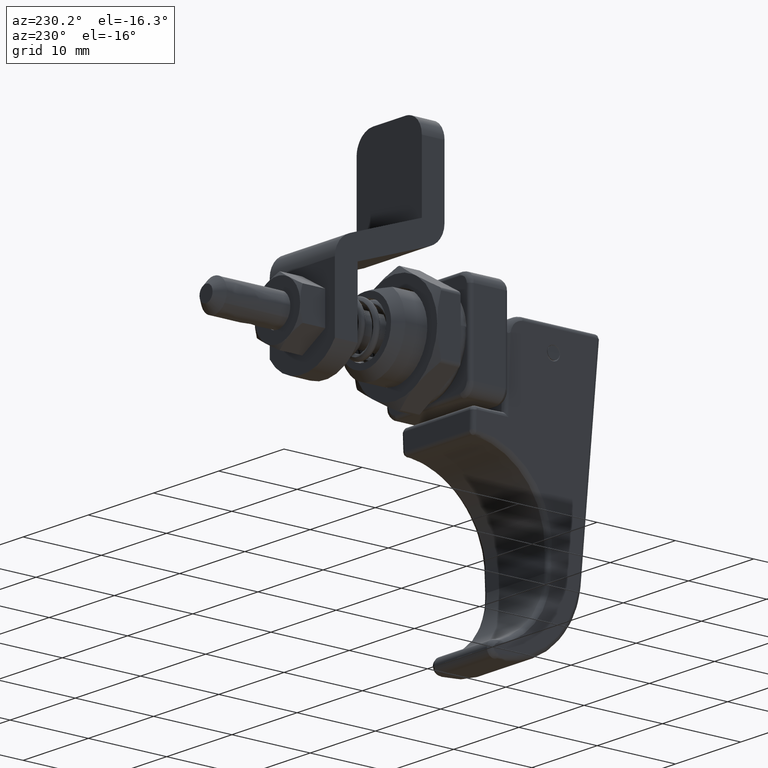
[diagram: clean part render]
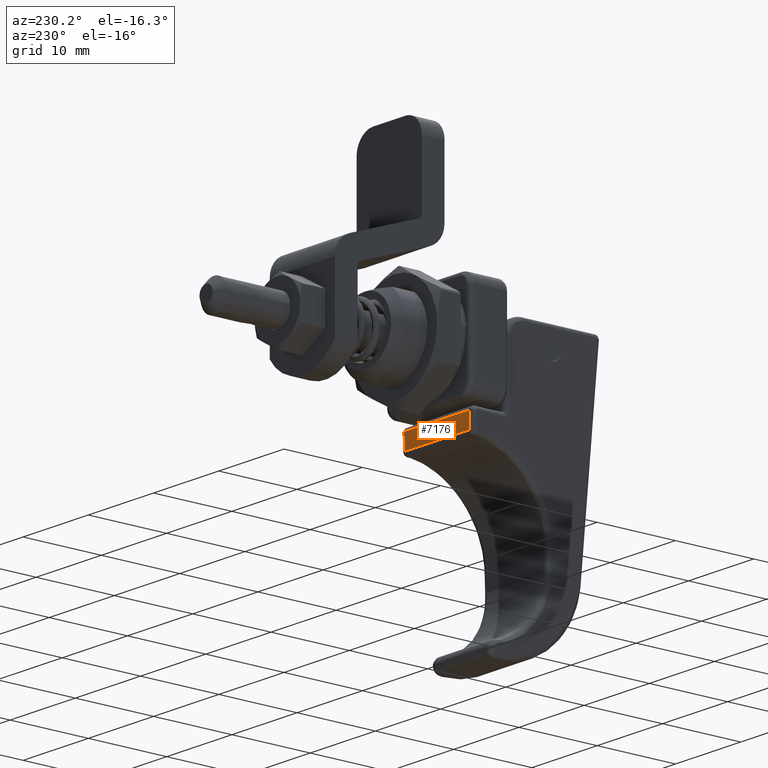
[diagram: same view with one face highlighted and labeled with its STEP entity id]
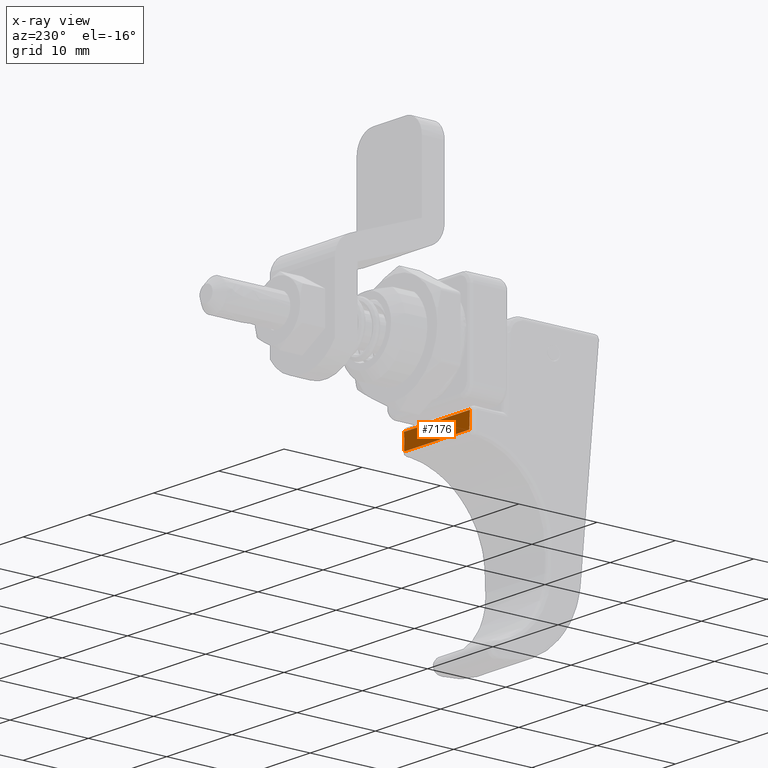
[diagram: x-ray of the same camera — body ghosted, the highlighted face saturated]
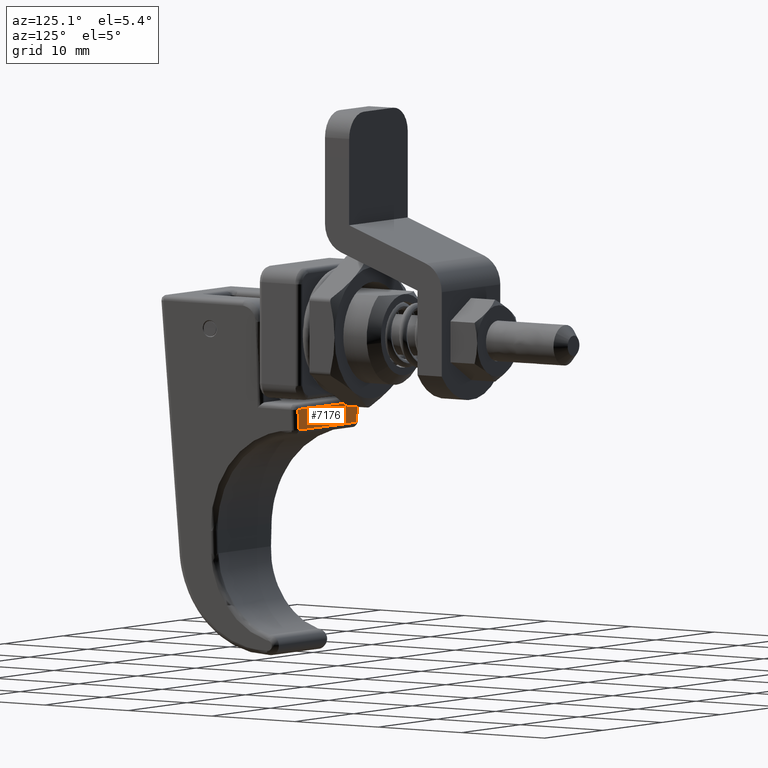
[diagram: same view with one face highlighted and labeled with its STEP entity id]
A machine part, auxiliary view. The second image highlights one B-rep face of the part: STEP entity #7176.
The next image is the same camera in x-ray: the body ghosted, the highlighted face saturated — about 0% of this face is hidden behind the body in this view.
A second angle (auxiliary view) of the same face is appended — the face is thin or edge-on in the first view.
In plain terms, the highlighted face is a freeform B-spline surface patch.
Its self-contained STEP definition (entity closure, byte-faithful):
#3235=CARTESIAN_POINT('',(-1.200000000000000,5.048913633767469,-7.500100000000000));
#3236=VERTEX_POINT('',#3235);
#3275=CARTESIAN_POINT('',(-1.200000000000000,4.962698575690050,-9.512011518298500));
#3276=VERTEX_POINT('',#3275);
#3296=CARTESIAN_POINT('',(-1.200000000000000,4.962698575690050,-9.512011518298500));
#3297=CARTESIAN_POINT('',(-1.200000000000000,5.048913633767469,-7.500100000000000));
#3298=QUASI_UNIFORM_CURVE('',1,(#3296,#3297),.UNSPECIFIED.,.F.,.U.);
#3299=EDGE_CURVE('',#3276,#3236,#3298,.T.);
#6293=CARTESIAN_POINT('',(-1.200000000000000,-4.963698575690010,-9.512011518298500));
#6294=VERTEX_POINT('',#6293);
#6522=CARTESIAN_POINT('',(-1.200000000000000,-5.049913633767500,-7.500100000000000));
#6523=VERTEX_POINT('',#6522);
#6542=CARTESIAN_POINT('',(-1.200000000000000,-5.049913633767500,-7.500100000000000));
#6543=CARTESIAN_POINT('',(-1.200000000000000,-4.963698575690010,-9.512011518298500));
#6544=QUASI_UNIFORM_CURVE('',1,(#6542,#6543),.UNSPECIFIED.,.F.,.U.);
#6545=EDGE_CURVE('',#6523,#6294,#6544,.T.);
#6934=CARTESIAN_POINT('',(-1.200000000000000,5.048913633767469,-7.500100000000000));
#6935=CARTESIAN_POINT('',(-1.200000000000000,-5.049913633767500,-7.500100000000000));
#6936=QUASI_UNIFORM_CURVE('',1,(#6934,#6935),.UNSPECIFIED.,.F.,.U.);
#6937=EDGE_CURVE('',#3236,#6523,#6936,.T.);
#6969=CARTESIAN_POINT('',(-1.200000000000000,-4.963698575690010,-9.512011518298500));
#6970=CARTESIAN_POINT('',(-1.200000000000000,4.962698575690050,-9.512011518298500));
#6971=QUASI_UNIFORM_CURVE('',1,(#6969,#6970),.UNSPECIFIED.,.F.,.U.);
#6972=EDGE_CURVE('',#6294,#3276,#6971,.T.);
#7165=CARTESIAN_POINT('',(-1.200000000000000,-5.554349810526150,-9.612506506436461));
#7166=CARTESIAN_POINT('',(-1.200000000000000,-5.554349810526150,-7.399605119789383));
#7167=CARTESIAN_POINT('',(-1.200000000000000,5.553349539654466,-9.612506506436461));
#7168=CARTESIAN_POINT('',(-1.200000000000000,5.553349539654466,-7.399605119789383));
#7169=B_SPLINE_SURFACE_WITH_KNOTS('',1,1,((#7165,#7167),(#7166,#7168)),.UNSPECIFIED.,.F.,.F.,.U.,(2,2),(2,2),(0.0,2.212901386647078),(0.0,11.107699350180621),.UNSPECIFIED.);
#7170=ORIENTED_EDGE('',*,*,#6972,.T.);
#7171=ORIENTED_EDGE('',*,*,#3299,.T.);
#7172=ORIENTED_EDGE('',*,*,#6937,.T.);
#7173=ORIENTED_EDGE('',*,*,#6545,.T.);
#7174=EDGE_LOOP('',(#7170,#7171,#7172,#7173));
#7175=FACE_OUTER_BOUND('',#7174,.T.);
#7176=ADVANCED_FACE('',(#7175),#7169,.F.);